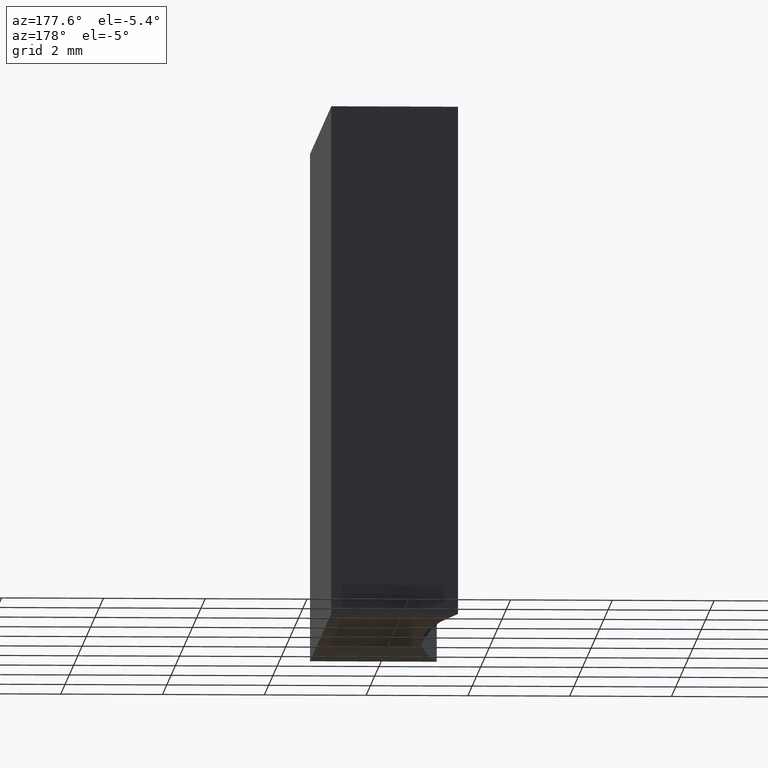
[diagram: clean part render]
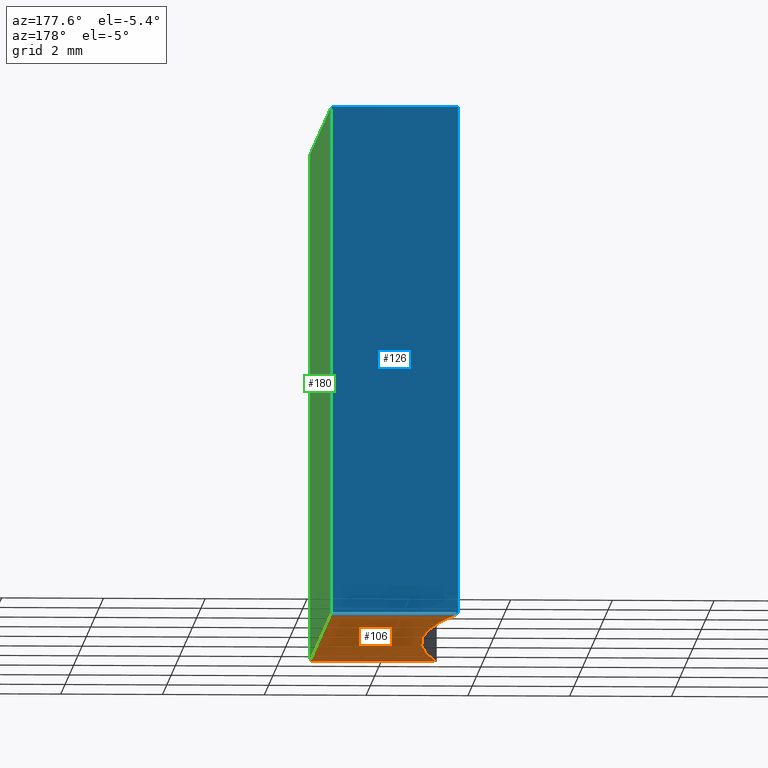
[diagram: same view with three faces highlighted in distinct colors, each labeled with its STEP entity id]
A machine part, auxiliary view with three faces highlighted in distinct colors.
Their STEP definitions:

[orange] entity #106 — the highlighted planar face has unit normal (0, 0, 1).
#17 = LINE ( 'NONE', #20, #134 ) ;
#19 = CARTESIAN_POINT ( 'NONE',  ( 8.812458246586681199, -11.23237824220924530, 0.000000000000000000 ) ) ;
#20 = CARTESIAN_POINT ( 'NONE',  ( 8.812458246586677646, -1.232378242209244856, 0.000000000000000000 ) ) ;
#25 = AXIS2_PLACEMENT_3D ( 'NONE', #218, #223, #116 ) ;
#28 = AXIS2_PLACEMENT_3D ( 'NONE', #96, #109, #131 ) ;
#33 = LINE ( 'NONE', #19, #98 ) ;
#46 = ORIENTED_EDGE ( 'NONE', *, *, #102, .F. ) ;
#65 = EDGE_CURVE ( 'NONE', #191, #189, #178, .T. ) ;
#67 = EDGE_LOOP ( 'NONE', ( #231, #46, #232, #157 ) ) ;
#71 = VERTEX_POINT ( 'NONE', #112 ) ;
#76 = VECTOR ( 'NONE', #179, 1000.000000000000000 ) ;
#95 = DIRECTION ( 'NONE',  ( 1.000000000000000000, 0.000000000000000000, 0.000000000000000000 ) ) ;
#96 = CARTESIAN_POINT ( 'NONE',  ( -16.54937331187928606, -6.232378242209254182, 0.000000000000000000 ) ) ;
#98 = VECTOR ( 'NONE', #95, 1000.000000000000000 ) ;
#102 = EDGE_CURVE ( 'NONE', #189, #71, #17, .T. ) ;
#106 = ADVANCED_FACE ( 'NONE', ( #132 ), #144, .F. ) ;
#109 = DIRECTION ( 'NONE',  ( 0.000000000000000000, 0.000000000000000000, 1.000000000000000000 ) ) ;
#112 = CARTESIAN_POINT ( 'NONE',  ( 8.812458246586677646, -1.232378242209244856, 0.000000000000000000 ) ) ;
#116 = DIRECTION ( 'NONE',  ( 1.000000000000000000, 0.000000000000000000, 0.000000000000000000 ) ) ;
#129 = CARTESIAN_POINT ( 'NONE',  ( 11.30245824658667964, -11.23237824220924530, 0.000000000000000000 ) ) ;
#131 = DIRECTION ( 'NONE',  ( 1.000000000000000000, 0.000000000000000000, -0.000000000000000000 ) ) ;
#132 = FACE_OUTER_BOUND ( 'NONE', #67, .T. ) ;
#134 = VECTOR ( 'NONE', #181, 1000.000000000000000 ) ;
#144 = PLANE ( 'NONE',  #28 ) ;
#145 = CARTESIAN_POINT ( 'NONE',  ( 8.812458246586681199, -11.23237824220924530, 0.000000000000000000 ) ) ;
#156 = EDGE_CURVE ( 'NONE', #234, #191, #33, .T. ) ;
#157 = ORIENTED_EDGE ( 'NONE', *, *, #156, .F. ) ;
#178 = LINE ( 'NONE', #197, #76 ) ;
#179 = DIRECTION ( 'NONE',  ( -1.734723475976807094E-16, 1.000000000000000000, -0.000000000000000000 ) ) ;
#181 = DIRECTION ( 'NONE',  ( -1.000000000000000000, -0.000000000000000000, -0.000000000000000000 ) ) ;
#189 = VERTEX_POINT ( 'NONE', #239 ) ;
#191 = VERTEX_POINT ( 'NONE', #129 ) ;
#197 = CARTESIAN_POINT ( 'NONE',  ( 11.30245824658667786, -1.232378242209244856, 0.000000000000000000 ) ) ;
#218 = CARTESIAN_POINT ( 'NONE',  ( -16.54937331187928606, -6.232378242209254182, 0.000000000000000000 ) ) ;
#223 = DIRECTION ( 'NONE',  ( -0.000000000000000000, -0.000000000000000000, -1.000000000000000000 ) ) ;
#230 = CIRCLE ( 'NONE', #25, 25.85000000000000497 ) ;
#231 = ORIENTED_EDGE ( 'NONE', *, *, #235, .F. ) ;
#232 = ORIENTED_EDGE ( 'NONE', *, *, #65, .F. ) ;
#234 = VERTEX_POINT ( 'NONE', #145 ) ;
#235 = EDGE_CURVE ( 'NONE', #71, #234, #230, .T. ) ;
#239 = CARTESIAN_POINT ( 'NONE',  ( 11.30245824658667786, -1.232378242209244856, 0.000000000000000000 ) ) ;

[blue] entity #126 — the highlighted planar face has unit normal (0, -1, 0).
#1 = DIRECTION ( 'NONE',  ( 0.000000000000000000, -0.000000000000000000, -1.000000000000000000 ) ) ;
#17 = LINE ( 'NONE', #20, #134 ) ;
#20 = CARTESIAN_POINT ( 'NONE',  ( 8.812458246586677646, -1.232378242209244856, 0.000000000000000000 ) ) ;
#34 = FACE_OUTER_BOUND ( 'NONE', #229, .T. ) ;
#36 = CARTESIAN_POINT ( 'NONE',  ( 8.812458246586677646, -1.232378242209244856, 10.00000000000000000 ) ) ;
#45 = ORIENTED_EDGE ( 'NONE', *, *, #102, .T. ) ;
#47 = ORIENTED_EDGE ( 'NONE', *, *, #55, .T. ) ;
#50 = DIRECTION ( 'NONE',  ( 0.000000000000000000, -1.000000000000000000, 0.000000000000000000 ) ) ;
#52 = PLANE ( 'NONE',  #192 ) ;
#55 = EDGE_CURVE ( 'NONE', #107, #189, #219, .T. ) ;
#71 = VERTEX_POINT ( 'NONE', #112 ) ;
#80 = VECTOR ( 'NONE', #238, 1000.000000000000000 ) ;
#91 = ORIENTED_EDGE ( 'NONE', *, *, #226, .F. ) ;
#102 = EDGE_CURVE ( 'NONE', #189, #71, #17, .T. ) ;
#107 = VERTEX_POINT ( 'NONE', #237 ) ;
#110 = LINE ( 'NONE', #161, #80 ) ;
#112 = CARTESIAN_POINT ( 'NONE',  ( 8.812458246586677646, -1.232378242209244856, 0.000000000000000000 ) ) ;
#113 = CARTESIAN_POINT ( 'NONE',  ( 11.30245824658667786, -1.232378242209244856, 10.00000000000000000 ) ) ;
#124 = ORIENTED_EDGE ( 'NONE', *, *, #164, .F. ) ;
#126 = ADVANCED_FACE ( 'NONE', ( #34 ), #52, .F. ) ;
#130 = DIRECTION ( 'NONE',  ( -0.000000000000000000, -0.000000000000000000, -1.000000000000000000 ) ) ;
#134 = VECTOR ( 'NONE', #181, 1000.000000000000000 ) ;
#147 = LINE ( 'NONE', #36, #227 ) ;
#160 = CARTESIAN_POINT ( 'NONE',  ( 8.812458246586677646, -1.232378242209244856, 10.00000000000000000 ) ) ;
#161 = CARTESIAN_POINT ( 'NONE',  ( 8.812458246586677646, -1.232378242209244856, 10.00000000000000000 ) ) ;
#163 = CARTESIAN_POINT ( 'NONE',  ( 8.812458246586677646, -1.232378242209244856, 10.00000000000000000 ) ) ;
#164 = EDGE_CURVE ( 'NONE', #107, #193, #147, .T. ) ;
#173 = VECTOR ( 'NONE', #130, 1000.000000000000000 ) ;
#181 = DIRECTION ( 'NONE',  ( -1.000000000000000000, -0.000000000000000000, -0.000000000000000000 ) ) ;
#182 = DIRECTION ( 'NONE',  ( -1.000000000000000000, -0.000000000000000000, -0.000000000000000000 ) ) ;
#189 = VERTEX_POINT ( 'NONE', #239 ) ;
#192 = AXIS2_PLACEMENT_3D ( 'NONE', #163, #50, #1 ) ;
#193 = VERTEX_POINT ( 'NONE', #160 ) ;
#219 = LINE ( 'NONE', #113, #173 ) ;
#226 = EDGE_CURVE ( 'NONE', #193, #71, #110, .T. ) ;
#227 = VECTOR ( 'NONE', #182, 1000.000000000000000 ) ;
#229 = EDGE_LOOP ( 'NONE', ( #45, #91, #124, #47 ) ) ;
#237 = CARTESIAN_POINT ( 'NONE',  ( 11.30245824658667786, -1.232378242209244856, 10.00000000000000000 ) ) ;
#238 = DIRECTION ( 'NONE',  ( -0.000000000000000000, -0.000000000000000000, -1.000000000000000000 ) ) ;
#239 = CARTESIAN_POINT ( 'NONE',  ( 11.30245824658667786, -1.232378242209244856, 0.000000000000000000 ) ) ;

[green] entity #180 — the highlighted planar face has unit normal (-1, -0, 0).
#8 = ORIENTED_EDGE ( 'NONE', *, *, #78, .T. ) ;
#12 = ORIENTED_EDGE ( 'NONE', *, *, #55, .F. ) ;
#16 = EDGE_LOOP ( 'NONE', ( #142, #12, #153, #8 ) ) ;
#55 = EDGE_CURVE ( 'NONE', #107, #189, #219, .T. ) ;
#65 = EDGE_CURVE ( 'NONE', #191, #189, #178, .T. ) ;
#69 = VECTOR ( 'NONE', #146, 1000.000000000000000 ) ;
#73 = DIRECTION ( 'NONE',  ( 1.734723475976807094E-16, -1.000000000000000000, 0.000000000000000000 ) ) ;
#74 = LINE ( 'NONE', #77, #217 ) ;
#76 = VECTOR ( 'NONE', #179, 1000.000000000000000 ) ;
#77 = CARTESIAN_POINT ( 'NONE',  ( 11.30245824658667964, -11.23237824220924530, 10.00000000000000000 ) ) ;
#78 = EDGE_CURVE ( 'NONE', #214, #191, #74, .T. ) ;
#107 = VERTEX_POINT ( 'NONE', #237 ) ;
#111 = CARTESIAN_POINT ( 'NONE',  ( 11.30245824658667786, -1.232378242209244856, 10.00000000000000000 ) ) ;
#113 = CARTESIAN_POINT ( 'NONE',  ( 11.30245824658667786, -1.232378242209244856, 10.00000000000000000 ) ) ;
#125 = AXIS2_PLACEMENT_3D ( 'NONE', #111, #162, #73 ) ;
#128 = LINE ( 'NONE', #143, #69 ) ;
#129 = CARTESIAN_POINT ( 'NONE',  ( 11.30245824658667964, -11.23237824220924530, 0.000000000000000000 ) ) ;
#130 = DIRECTION ( 'NONE',  ( -0.000000000000000000, -0.000000000000000000, -1.000000000000000000 ) ) ;
#142 = ORIENTED_EDGE ( 'NONE', *, *, #65, .T. ) ;
#143 = CARTESIAN_POINT ( 'NONE',  ( 11.30245824658667786, -1.232378242209244856, 10.00000000000000000 ) ) ;
#146 = DIRECTION ( 'NONE',  ( -1.734723475976807094E-16, 1.000000000000000000, -0.000000000000000000 ) ) ;
#153 = ORIENTED_EDGE ( 'NONE', *, *, #207, .F. ) ;
#158 = FACE_OUTER_BOUND ( 'NONE', #16, .T. ) ;
#162 = DIRECTION ( 'NONE',  ( -1.000000000000000000, -1.734723475976807094E-16, 0.000000000000000000 ) ) ;
#173 = VECTOR ( 'NONE', #130, 1000.000000000000000 ) ;
#178 = LINE ( 'NONE', #197, #76 ) ;
#179 = DIRECTION ( 'NONE',  ( -1.734723475976807094E-16, 1.000000000000000000, -0.000000000000000000 ) ) ;
#180 = ADVANCED_FACE ( 'NONE', ( #158 ), #236, .F. ) ;
#189 = VERTEX_POINT ( 'NONE', #239 ) ;
#191 = VERTEX_POINT ( 'NONE', #129 ) ;
#196 = DIRECTION ( 'NONE',  ( -0.000000000000000000, -0.000000000000000000, -1.000000000000000000 ) ) ;
#197 = CARTESIAN_POINT ( 'NONE',  ( 11.30245824658667786, -1.232378242209244856, 0.000000000000000000 ) ) ;
#207 = EDGE_CURVE ( 'NONE', #214, #107, #128, .T. ) ;
#214 = VERTEX_POINT ( 'NONE', #216 ) ;
#216 = CARTESIAN_POINT ( 'NONE',  ( 11.30245824658667964, -11.23237824220924530, 10.00000000000000000 ) ) ;
#217 = VECTOR ( 'NONE', #196, 1000.000000000000000 ) ;
#219 = LINE ( 'NONE', #113, #173 ) ;
#236 = PLANE ( 'NONE',  #125 ) ;
#237 = CARTESIAN_POINT ( 'NONE',  ( 11.30245824658667786, -1.232378242209244856, 10.00000000000000000 ) ) ;
#239 = CARTESIAN_POINT ( 'NONE',  ( 11.30245824658667786, -1.232378242209244856, 0.000000000000000000 ) ) ;